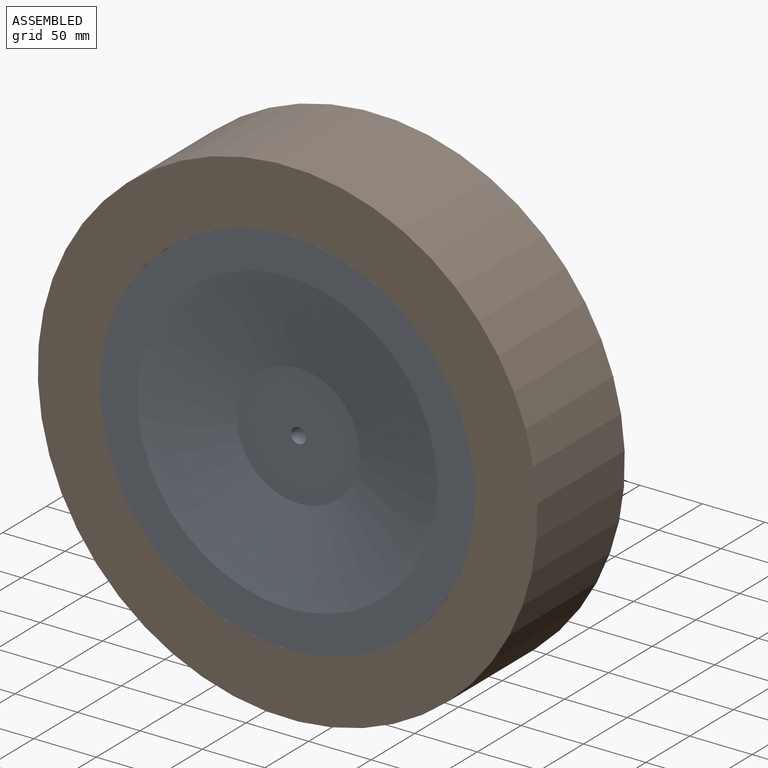
[diagram: assembled view]
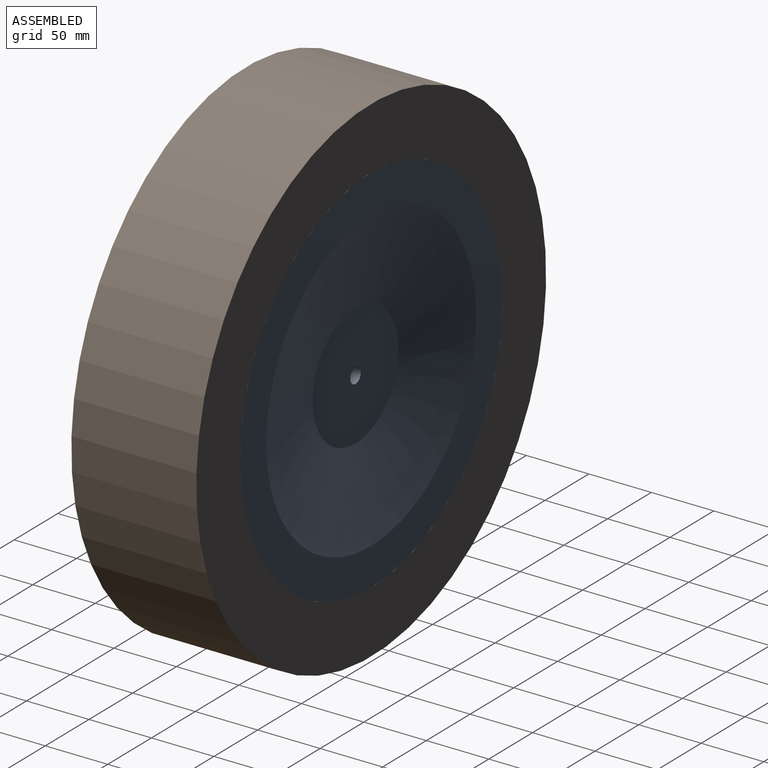
[diagram: assembled view, second angle]
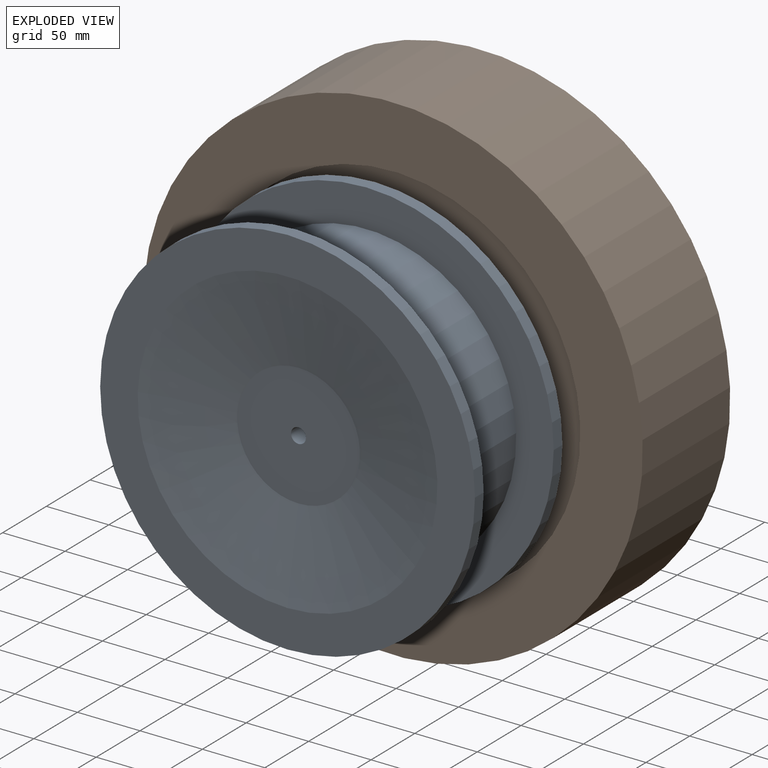
[diagram: exploded view]
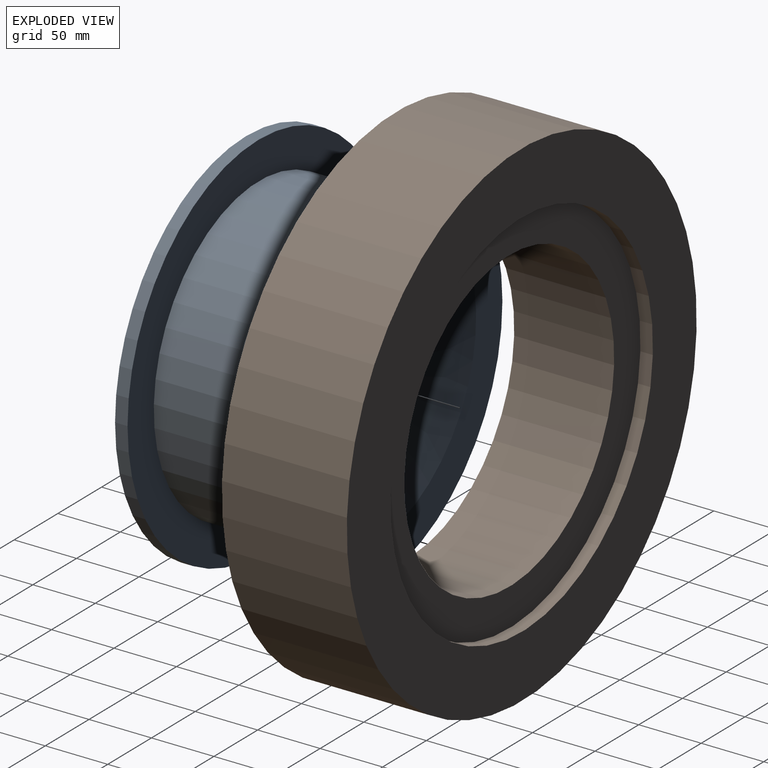
[diagram: exploded view, second angle]
ASSEMBLY  parts=2 mates=2
PART A: 12 faces, bbox 300x100x300 mm
  f0: cylinder r=6mm len=75mm, axis (0,-1,0), area 2827.4mm2, adj f1,f7
  f1: plane 98.22x98.22mm, normal (0,-1,0), area 7463.5mm2, adj f0,f2
  f2: cone r=49.11mm half-angle=80deg, axis (0,-1,0), area 38243.4mm2, adj f1,f3
  f3: plane 300x300mm, normal (0,-1,0), area 25446.9mm2, adj f2,f4
  f4: cylinder r=150mm len=300mm, axis (0,-1,0), area 9424.8mm2, adj f3,f5
  f5: plane 300x300mm, normal (0,1,0), area 25446.9mm2, adj f4,f6
  f6: cylinder r=120mm len=240mm, axis (0,-1,0), area 60318.6mm2, adj f5,f11
  f7: plane 98.22x98.22mm, normal (0,1,0), area 7463.5mm2, adj f0,f8
  f8: cone r=49.11mm half-angle=80deg, axis (0,1,0), area 38243.4mm2, adj f7,f9
  f9: plane 300x300mm, normal (0,1,0), area 25446.9mm2, adj f8,f10
  f10: cylinder r=150mm len=300mm, axis (0,1,0), area 9424.8mm2, adj f9,f11
  f11: plane 300x300mm, normal (0,-1,0), area 25446.9mm2, adj f6,f10
PART B: 8 faces, bbox 400x100x400 mm
  f0: cylinder r=150mm len=300mm, axis (0,-1,0), area 9424.8mm2, adj f1,f4
  f1: plane 400x400mm, normal (0,-1,0), area 54977.9mm2, adj f0,f2
  f2: cylinder r=200mm len=400mm, axis (0,-1,0), area 125663.7mm2, adj f1,f6
  f3: cylinder r=120mm len=240mm, axis (0,-1,0), area 60318.6mm2, adj f4,f7
  f4: plane 300x300mm, normal (0,-1,0), area 25446.9mm2, adj f0,f3
  f5: cylinder r=150mm len=300mm, axis (0,1,0), area 9424.8mm2, adj f6,f7
  f6: plane 400x400mm, normal (0,1,0), area 54977.9mm2, adj f2,f5
  f7: plane 300x300mm, normal (0,1,0), area 25446.9mm2, adj f3,f5
PLACE A t=(-121.11,-93.91,-35.98)mm fixed
PLACE B rot(axis=(0,1,0),27.4deg) t=(-121.11,-93.91,-35.98)mm
MATE cylindrical B.f0 <-> A.f0  axis (0,-1,0) through (-121.11,-93.91,-35.98)mm
MATE planar B.f0 <-> A.f0  axis (0,-1,0) through (-121.11,-143.91,-35.98)mm
